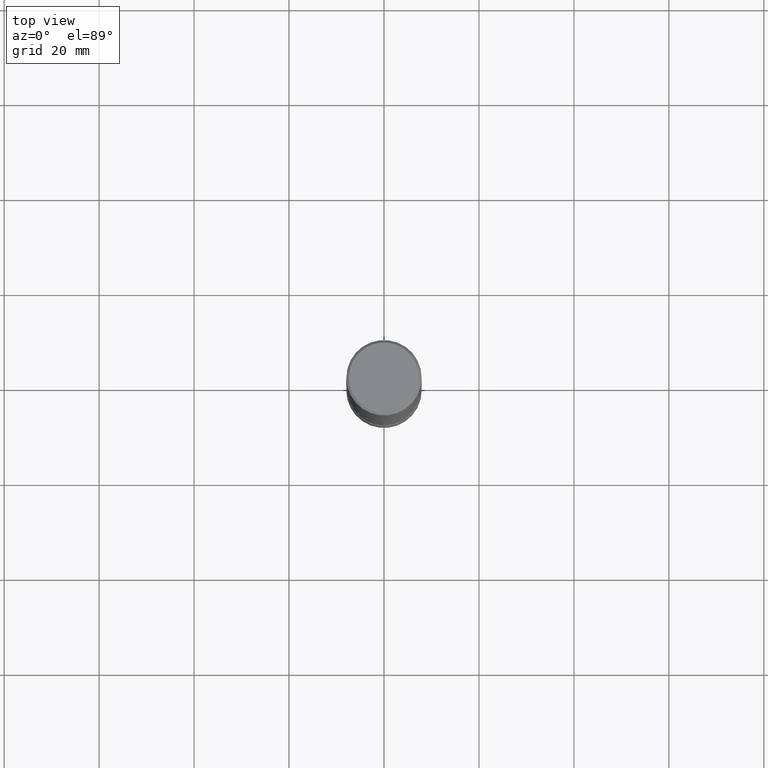
[diagram: clean part render]
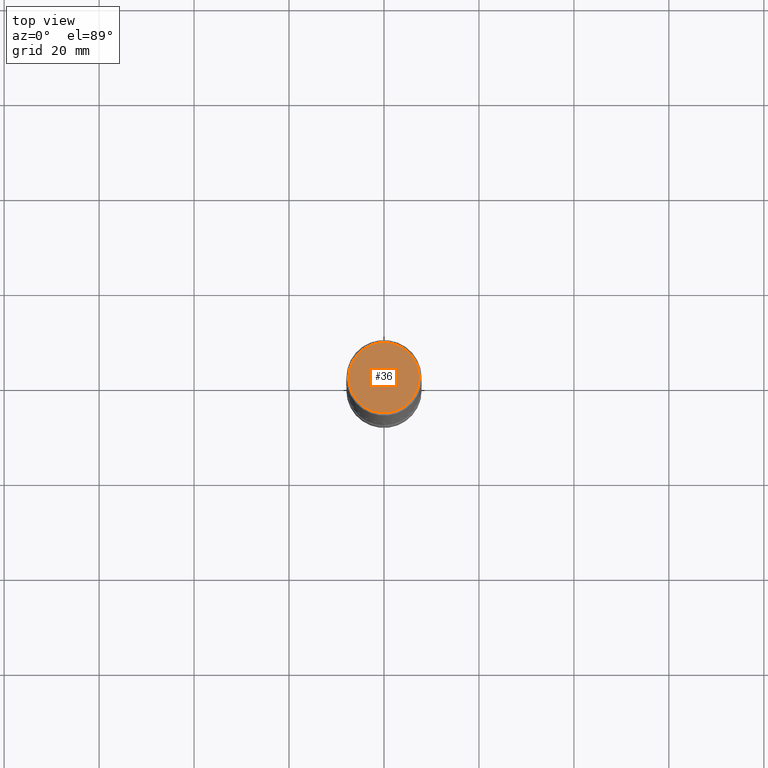
[diagram: same view with one face highlighted and labeled with its STEP entity id]
A machine part, top view. The second image highlights one B-rep face of the part: STEP entity #36.
In plain terms, the highlighted planar face has unit normal (0, -0, -1).
Its self-contained STEP definition (entity closure, byte-faithful):
#6 = DIRECTION ( 'NONE',  ( -2.445468806185136597E-29, 3.491481338843145583E-15, 1.000000000000000000 ) ) ;
#35 = DIRECTION ( 'NONE',  ( 2.438088387897960049E-29, -3.491481338843145188E-15, -1.000000000000000000 ) ) ;
#36 = ADVANCED_FACE ( 'NONE', ( #255 ), #424, .F. ) ;
#44 = ORIENTED_EDGE ( 'NONE', *, *, #534, .T. ) ;
#49 = CARTESIAN_POINT ( 'NONE',  ( 0.2925000000000006484, -2.110215457714323481E-15, 4.268512490114932791E-18 ) ) ;
#108 = ORIENTED_EDGE ( 'NONE', *, *, #458, .T. ) ;
#137 = DIRECTION ( 'NONE',  ( 1.000000000000000000, -6.982962677686267499E-15, 4.876067333457678827E-29 ) ) ;
#153 = EDGE_LOOP ( 'NONE', ( #44, #108 ) ) ;
#159 = DIRECTION ( 'NONE',  ( -1.000000000000000000, 6.982962677686265922E-15, -4.876176775795935793E-29 ) ) ;
#206 = CARTESIAN_POINT ( 'NONE',  ( 2.042516583223237273E-15, 0.2925000000000006484, -1.019124035366572170E-15 ) ) ;
#214 = CARTESIAN_POINT ( 'NONE',  ( -1.043851414335219820E-46, 1.490343170380447200E-32, 4.268512490100411279E-18 ) ) ;
#233 = CARTESIAN_POINT ( 'NONE',  ( -1.043851414335219820E-46, 1.490343170380447200E-32, 4.268512490100411279E-18 ) ) ;
#237 = AXIS2_PLACEMENT_3D ( 'NONE', #233, #6, #137 ) ;
#255 = FACE_OUTER_BOUND ( 'NONE', #153, .T. ) ;
#273 = DIRECTION ( 'NONE',  ( 1.000000000000000000, -6.982962677686267499E-15, 4.876067333457678827E-29 ) ) ;
#299 = AXIS2_PLACEMENT_3D ( 'NONE', #214, #482, #273 ) ;
#373 = CARTESIAN_POINT ( 'NONE',  ( -0.2925000000000006484, 2.077431396611668527E-15, 4.268512490086005323E-18 ) ) ;
#390 = VERTEX_POINT ( 'NONE', #373 ) ;
#400 = AXIS2_PLACEMENT_3D ( 'NONE', #206, #35, #159 ) ;
#424 = PLANE ( 'NONE',  #400 ) ;
#441 = CIRCLE ( 'NONE', #299, 0.2925000000000006484 ) ;
#458 = EDGE_CURVE ( 'NONE', #518, #390, #463, .T. ) ;
#463 = CIRCLE ( 'NONE', #237, 0.2925000000000006484 ) ;
#482 = DIRECTION ( 'NONE',  ( -2.445468806185136597E-29, 3.491481338843145583E-15, 1.000000000000000000 ) ) ;
#518 = VERTEX_POINT ( 'NONE', #49 ) ;
#534 = EDGE_CURVE ( 'NONE', #390, #518, #441, .T. ) ;